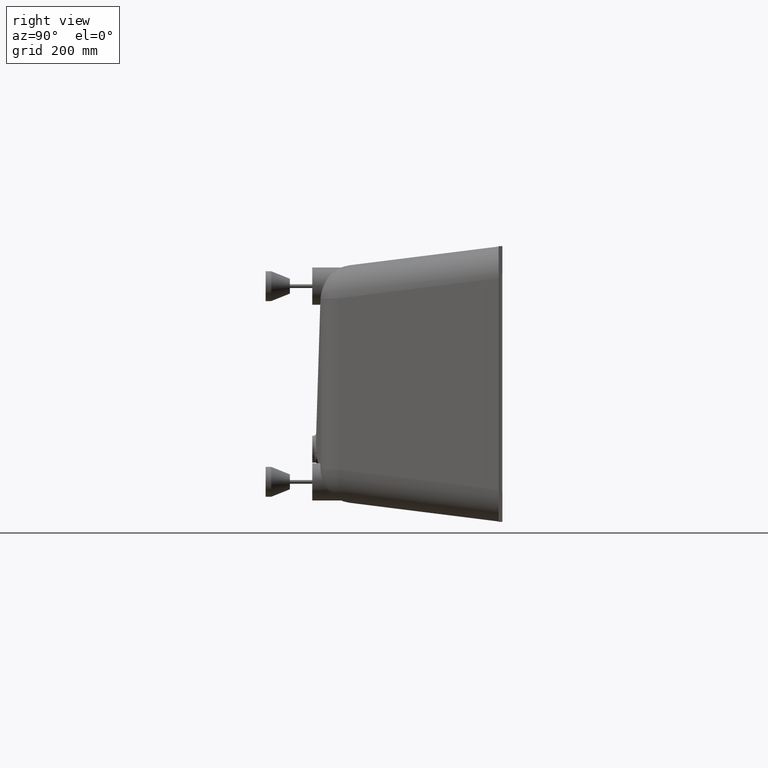
[diagram: clean part render]
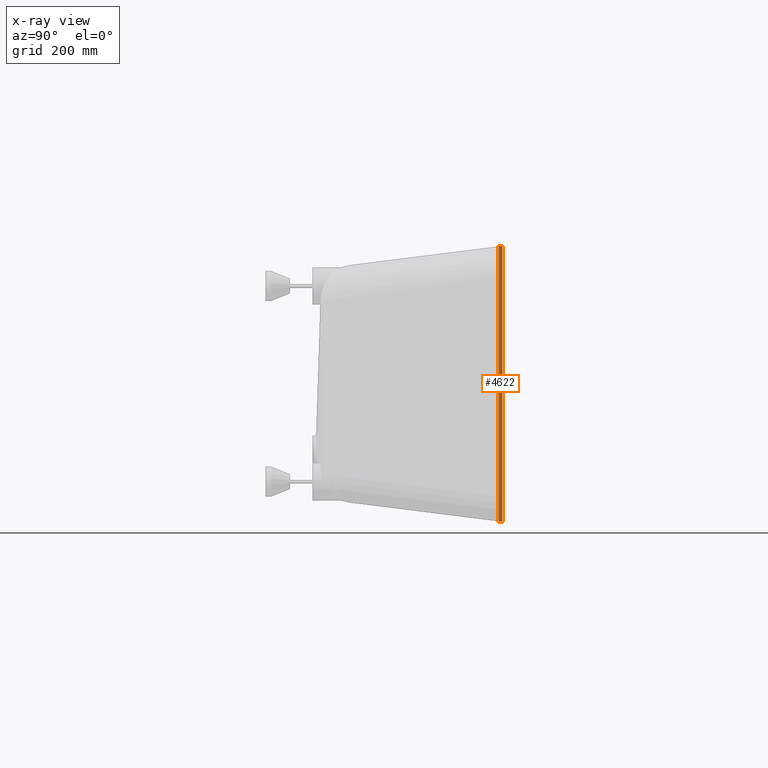
[diagram: x-ray — body ghosted, one internal face saturated and labeled with its STEP entity id]
A machine part, right view, then the same camera in x-ray: the body is ghosted and one INTERNAL B-rep face — a face not visible from any outside direction — is saturated and labeled: STEP entity #4622.
In plain terms, the highlighted planar face has unit normal (-1, 0, 0).
Its self-contained STEP definition (entity closure, byte-faithful):
#499 = CARTESIAN_POINT ( 'NONE',  ( -850.0000000000000000, -10.00000000000000000, 370.0000000000001100 ) ) ;
#589 = VECTOR ( 'NONE', #5398, 1000.000000000000000 ) ;
#684 = VERTEX_POINT ( 'NONE', #1259 ) ;
#796 = DIRECTION ( 'NONE',  ( 0.0000000000000000000, 1.000000000000000000, 0.0000000000000000000 ) ) ;
#813 = CARTESIAN_POINT ( 'NONE',  ( -850.0000000000000000, -10.00000000000000000, -369.9999999999997200 ) ) ;
#879 = CARTESIAN_POINT ( 'NONE',  ( -850.0000000000000000, -10.00000000000000000, -369.9999999999997200 ) ) ;
#1245 = CARTESIAN_POINT ( 'NONE',  ( -850.0000000000000000, 0.0000000000000000000, -369.9999999999997200 ) ) ;
#1259 = CARTESIAN_POINT ( 'NONE',  ( -850.0000000000000000, 0.0000000000000000000, 370.0000000000001100 ) ) ;
#1531 = EDGE_CURVE ( 'NONE', #10718, #684, #8661, .T. ) ;
#1737 = EDGE_CURVE ( 'NONE', #8642, #10718, #9058, .T. ) ;
#1763 = ORIENTED_EDGE ( 'NONE', *, *, #9370, .T. ) ;
#3219 = PLANE ( 'NONE',  #4822 ) ;
#4274 = ORIENTED_EDGE ( 'NONE', *, *, #1531, .F. ) ;
#4591 = LINE ( 'NONE', #8116, #6554 ) ;
#4622 = ADVANCED_FACE ( 'NONE', ( #10797 ), #3219, .T. ) ;
#4822 = AXIS2_PLACEMENT_3D ( 'NONE', #10449, #10564, #10567 ) ;
#5102 = LINE ( 'NONE', #5435, #589 ) ;
#5398 = DIRECTION ( 'NONE',  ( 0.0000000000000000000, 1.000000000000000000, 0.0000000000000000000 ) ) ;
#5435 = CARTESIAN_POINT ( 'NONE',  ( -850.0000000000000000, -10.00000000000000000, 370.0000000000001100 ) ) ;
#6554 = VECTOR ( 'NONE', #7935, 1000.000000000000000 ) ;
#6615 = ORIENTED_EDGE ( 'NONE', *, *, #9550, .T. ) ;
#6960 = DIRECTION ( 'NONE',  ( 0.0000000000000000000, 0.0000000000000000000, 1.000000000000000000 ) ) ;
#7935 = DIRECTION ( 'NONE',  ( 0.0000000000000000000, 0.0000000000000000000, 1.000000000000000000 ) ) ;
#8008 = VERTEX_POINT ( 'NONE', #499 ) ;
#8116 = CARTESIAN_POINT ( 'NONE',  ( -850.0000000000000000, -10.00000000000000000, -369.9999999999997200 ) ) ;
#8257 = ORIENTED_EDGE ( 'NONE', *, *, #1737, .F. ) ;
#8642 = VERTEX_POINT ( 'NONE', #879 ) ;
#8661 = LINE ( 'NONE', #9455, #9472 ) ;
#9058 = LINE ( 'NONE', #813, #10064 ) ;
#9370 = EDGE_CURVE ( 'NONE', #8008, #684, #5102, .T. ) ;
#9455 = CARTESIAN_POINT ( 'NONE',  ( -850.0000000000000000, 0.0000000000000000000, -369.9999999999997200 ) ) ;
#9472 = VECTOR ( 'NONE', #6960, 1000.000000000000000 ) ;
#9550 = EDGE_CURVE ( 'NONE', #8642, #8008, #4591, .T. ) ;
#10064 = VECTOR ( 'NONE', #796, 1000.000000000000000 ) ;
#10449 = CARTESIAN_POINT ( 'NONE',  ( -850.0000000000000000, -10.00000000000000000, -369.9999999999997200 ) ) ;
#10564 = DIRECTION ( 'NONE',  ( -1.000000000000000000, 0.0000000000000000000, 0.0000000000000000000 ) ) ;
#10567 = DIRECTION ( 'NONE',  ( 0.0000000000000000000, 0.0000000000000000000, 1.000000000000000000 ) ) ;
#10718 = VERTEX_POINT ( 'NONE', #1245 ) ;
#10743 = EDGE_LOOP ( 'NONE', ( #4274, #8257, #6615, #1763 ) ) ;
#10797 = FACE_OUTER_BOUND ( 'NONE', #10743, .T. ) ;